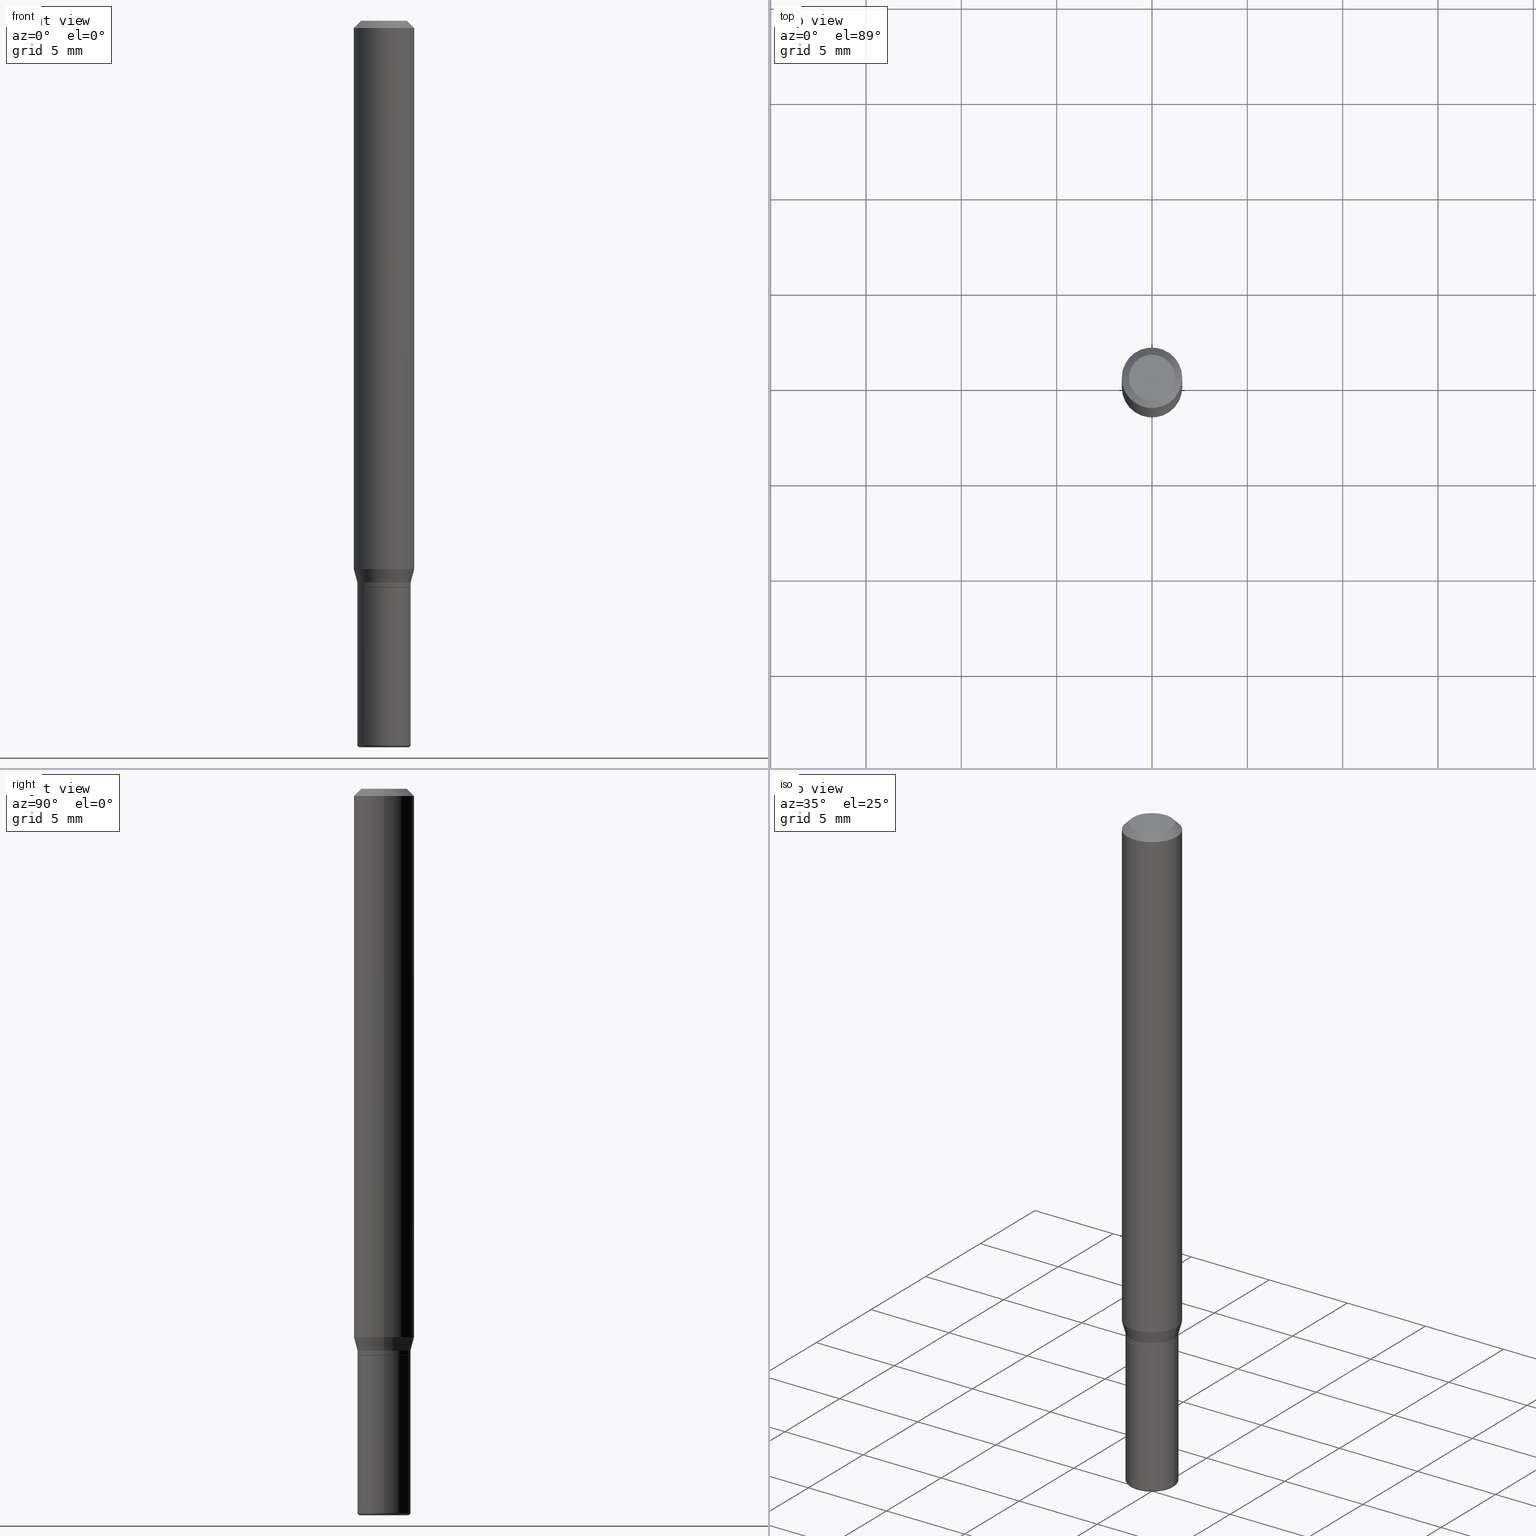
[diagram: canonical four-view strip — front | top / right | iso, engineering-drawing reading convention]
A machine part, canonical four-view strip (front | top / right | iso — engineering-drawing reading convention). The complete STEP part file that produces these views, byte-faithful:
ISO-10303-21;
HEADER;
FILE_DESCRIPTION (( 'STEP AP203' ),
    '1' );
FILE_NAME ('08612.STEP',
    '2024-02-29T19:59:27',
    ( '' ),
    ( '' ),
    'SwSTEP 2.0',
    'SolidWorks 2023',
    '' );
FILE_SCHEMA (( 'CONFIG_CONTROL_DESIGN' ));
ENDSEC;

DATA;
#1 = ORIENTED_EDGE ( 'NONE', *, *, #147, .F. ) ;
#2 = DIRECTION ( 'NONE',  ( -0.7071067811864267805, 7.493145998869918709E-15, 0.7071067811866682540 ) ) ;
#3 = ORIENTED_EDGE ( 'NONE', *, *, #218, .F. ) ;
#4 = EDGE_LOOP ( 'NONE', ( #86, #514 ) ) ;
#5 = CARTESIAN_POINT ( 'NONE',  ( -0.05450000000000009698, -3.697787375457225517E-15, -1.170000000000000151 ) ) ;
#6 = ORIENTED_EDGE ( 'NONE', *, *, #461, .F. ) ;
#7 = ADVANCED_FACE ( 'NONE', ( #10 ), #184, .T. ) ;
#8 = DIRECTION ( 'NONE',  ( -2.438088387897960049E-29, 3.491481338843145188E-15, 1.000000000000000000 ) ) ;
#9 = AXIS2_PLACEMENT_3D ( 'NONE', #497, #303, #457 ) ;
#10 = FACE_OUTER_BOUND ( 'NONE', #186, .T. ) ;
#11 = ADVANCED_FACE ( 'NONE', ( #79 ), #166, .T. ) ;
#12 = CARTESIAN_POINT ( 'NONE',  ( 2.861198503236610065E-29, -4.085033166446480067E-15, -1.170000000000000151 ) ) ;
#13 = DIRECTION ( 'NONE',  ( 1.000000000000000000, -6.982962677686274599E-15, 4.883557194083115704E-29 ) ) ;
#14 = EDGE_CURVE ( 'NONE', #104, #492, #118, .T. ) ;
#15 = DIRECTION ( 'NONE',  ( 1.000000000000000000, -6.982962677686262766E-15, 0.000000000000000000 ) ) ;
#16 = APPROVAL_STATUS ( 'not_yet_approved' ) ;
#17 = CARTESIAN_POINT ( 'NONE',  ( 0.06250000000000000000, -4.888073874380378612E-16, -0.01499999999999970281 ) ) ;
#18 = CIRCLE ( 'NONE', #70, 0.04999999999999999584 ) ;
#19 = CARTESIAN_POINT ( 'NONE',  ( 0.05450000000000009698, -4.465604632380382834E-15, -1.170000000000000151 ) ) ;
#20 = CARTESIAN_POINT ( 'NONE',  ( -0.05500000000000009742, -3.692488921109003115E-15, -1.169499999999999984 ) ) ;
#21 = EDGE_CURVE ( 'NONE', #126, #249, #80, .T. ) ;
#22 = CARTESIAN_POINT ( 'NONE',  ( -0.05500000000000018069, -4.261600379340434577E-15, -1.495000000000000107 ) ) ;
#23 = TOROIDAL_SURFACE ( 'NONE', #322, 0.05000000000000000278, 0.005000000000000177046 ) ;
#24 = CONICAL_SURFACE ( 'NONE', #483, 0.05450000000000009698, 0.7853981633972775267 ) ;
#25 = ORIENTED_EDGE ( 'NONE', *, *, #240, .T. ) ;
#26 = DIRECTION ( 'NONE',  ( -0.7071067811865479058, 2.468850131082261005E-15, -0.7071067811865471286 ) ) ;
#27 = ORIENTED_EDGE ( 'NONE', *, *, #48, .F. ) ;
#28 = ADVANCED_FACE ( 'NONE', ( #419 ), #222, .T. ) ;
#29 = CARTESIAN_POINT ( 'NONE',  ( 3.668203209277632395E-31, -5.237222008264614861E-17, -0.01499999999999970281 ) ) ;
#30 = LINE ( 'NONE', #354, #52 ) ;
#31 = ORIENTED_EDGE ( 'NONE', *, *, #412, .T. ) ;
#32 = AXIS2_PLACEMENT_3D ( 'NONE', #123, #454, #310 ) ;
#33 = AXIS2_PLACEMENT_3D ( 'NONE', #283, #436, #164 ) ;
#34 = DIRECTION ( 'NONE',  ( -1.000000000000000000, 6.982962677686266711E-15, 0.000000000000000000 ) ) ;
#35 = ORIENTED_EDGE ( 'NONE', *, *, #187, .F. ) ;
#36 = CARTESIAN_POINT ( 'NONE',  ( 3.668203209277632395E-31, -5.237222008264614861E-17, -0.01499999999999970281 ) ) ;
#37 = EDGE_LOOP ( 'NONE', ( #516, #212, #315, #203 ) ) ;
#38 = DIRECTION ( 'NONE',  ( 2.438088387897960049E-29, -3.491481338843145188E-15, -1.000000000000000000 ) ) ;
#39 = AXIS2_PLACEMENT_3D ( 'NONE', #308, #135, #61 ) ;
#40 = CARTESIAN_POINT ( 'NONE',  ( 0.05500000000000006967, -4.434181300330795770E-15, -1.160000000000000364 ) ) ;
#41 = VECTOR ( 'NONE', #394, 39.37007874015748143 ) ;
#42 = VERTEX_POINT ( 'NONE', #20 ) ;
#43 = COORDINATED_UNIVERSAL_TIME_OFFSET ( 5, 0, .BEHIND. ) ;
#44 = EDGE_CURVE ( 'NONE', #248, #476, #423, .T. ) ;
#45 = CARTESIAN_POINT ( 'NONE',  ( -0.04750000000000000749, 3.578768372314221353E-16, 2.731847993664239060E-16 ) ) ;
#46 = ORIENTED_EDGE ( 'NONE', *, *, #372, .T. ) ;
#47 = CARTESIAN_POINT ( 'NONE',  ( -0.06250000000000000000, -1.558292130156881494E-15, -0.01499999999999970281 ) ) ;
#48 = EDGE_CURVE ( 'NONE', #42, #325, #264, .T. ) ;
#49 = ORIENTED_EDGE ( 'NONE', *, *, #504, .F. ) ;
#50 = DIRECTION ( 'NONE',  ( -2.445468806185136597E-29, 3.491481338843145583E-15, 1.000000000000000000 ) ) ;
#51 = VERTEX_POINT ( 'NONE', #22 ) ;
#52 = VECTOR ( 'NONE', #468, 39.37007874015748143 ) ;
#53 = DATE_AND_TIME ( #411, #63 ) ;
#54 = CARTESIAN_POINT ( 'NONE',  ( 0.05500000000000018069, -5.603827548843249703E-15, -1.495000000000000107 ) ) ;
#55 = CARTESIAN_POINT ( 'NONE',  ( 0.000000000000000000, 0.000000000000000000, 0.000000000000000000 ) ) ;
#56 = DIRECTION ( 'NONE',  ( -2.445468806185136597E-29, 3.491481338843145583E-15, 1.000000000000000000 ) ) ;
#57 = DIRECTION ( 'NONE',  ( -2.445468806185136597E-29, 3.491481338843145583E-15, 1.000000000000000000 ) ) ;
#58 = AXIS2_PLACEMENT_3D ( 'NONE', #425, #513, #100 ) ;
#59 = APPROVAL_DATE_TIME ( #343, #257 ) ;
#60 = DIRECTION ( 'NONE',  ( -2.445468806185136877E-29, 3.491481338843145188E-15, 1.000000000000000000 ) ) ;
#61 = DIRECTION ( 'NONE',  ( 1.000000000000000000, -6.982962677686267499E-15, 4.876176775795936353E-29 ) ) ;
#62 = LINE ( 'NONE', #319, #127 ) ;
#63 = LOCAL_TIME ( 14, 59, 27.00000000000000000, #132 ) ;
#64 = AXIS2_PLACEMENT_3D ( 'NONE', #139, #141, #275 ) ;
#65 = DIRECTION ( 'NONE',  ( -2.445468806185136877E-29, 3.491481338843145188E-15, 1.000000000000000000 ) ) ;
#66 = ORIENTED_EDGE ( 'NONE', *, *, #180, .F. ) ;
#67 = DIRECTION ( 'NONE',  ( -2.445468806185136597E-29, 3.491481338843145583E-15, 1.000000000000000000 ) ) ;
#68 = VERTEX_POINT ( 'NONE', #17 ) ;
#69 = CYLINDRICAL_SURFACE ( 'NONE', #64, 0.05500000000000009742 ) ;
#70 = AXIS2_PLACEMENT_3D ( 'NONE', #155, #87, #478 ) ;
#71 = PLANE ( 'NONE',  #314 ) ;
#72 = EDGE_CURVE ( 'NONE', #249, #126, #294, .T. ) ;
#73 = ADVANCED_FACE ( 'NONE', ( #299 ), #336, .T. ) ;
#74 = ORIENTED_EDGE ( 'NONE', *, *, #360, .F. ) ;
#75 = DIRECTION ( 'NONE',  ( -2.445468806185136597E-29, 3.491481338843145583E-15, 1.000000000000000000 ) ) ;
#76 = VERTEX_POINT ( 'NONE', #384 ) ;
#77 = PERSON_AND_ORGANIZATION ( #433, #369 ) ;
#78 = CARTESIAN_POINT ( 'NONE',  ( 0.05000000000000000278, -5.568912735454817265E-15, -1.495000000000000107 ) ) ;
#79 = FACE_OUTER_BOUND ( 'NONE', #402, .T. ) ;
#80 = CIRCLE ( 'NONE', #270, 0.05450000000000009698 ) ;
#81 = FACE_OUTER_BOUND ( 'NONE', #142, .T. ) ;
#82 = CIRCLE ( 'NONE', #464, 0.04999999999999999584 ) ;
#83 = ORIENTED_EDGE ( 'NONE', *, *, #167, .F. ) ;
#84 = APPROVAL_DATE_TIME ( #243, #349 ) ;
#85 = DIRECTION ( 'NONE',  ( 1.000000000000000000, -6.982962677686270655E-15, 0.000000000000000000 ) ) ;
#86 = ORIENTED_EDGE ( 'NONE', *, *, #21, .F. ) ;
#87 = DIRECTION ( 'NONE',  ( -2.445468806185136597E-29, 3.491481338843145583E-15, 1.000000000000000000 ) ) ;
#88 = EDGE_LOOP ( 'NONE', ( #359, #353, #1, #83 ) ) ;
#89 = APPROVAL_STATUS ( 'not_yet_approved' ) ;
#90 = AXIS2_PLACEMENT_3D ( 'NONE', #505, #416, #380 ) ;
#91 = LINE ( 'NONE', #414, #385 ) ;
#92 =( LENGTH_UNIT ( ) NAMED_UNIT ( * ) SI_UNIT ( $, .METRE. ) );
#93 = DIRECTION ( 'NONE',  ( 1.000000000000000000, -6.982962677686276177E-15, 0.000000000000000000 ) ) ;
#94 = CARTESIAN_POINT ( 'NONE',  ( 0.04999999999999999584, -5.586370142149033090E-15, -1.500000000000000444 ) ) ;
#95 = APPLICATION_CONTEXT ( 'configuration controlled 3d designs of mechanical parts and assemblies' ) ;
#96 = VECTOR ( 'NONE', #113, 39.37007874015748143 ) ;
#97 = FACE_OUTER_BOUND ( 'NONE', #140, .T. ) ;
#98 = DIRECTION ( 'NONE',  ( -0.2588190451025209060, 5.211531920934547097E-15, 0.9659258262890682012 ) ) ;
#99 = CC_DESIGN_PERSON_AND_ORGANIZATION_ASSIGNMENT ( #178, #381, ( #124 ) ) ;
#100 = DIRECTION ( 'NONE',  ( 1.000000000000000000, -6.982962677686270655E-15, 0.000000000000000000 ) ) ;
#101 = CONICAL_SURFACE ( 'NONE', #152, 0.05500000000000006967, 0.2617993877991495744 ) ;
#102 = APPROVAL_PERSON_ORGANIZATION ( #77, #349, #157 ) ;
#103 = DIRECTION ( 'NONE',  ( -2.445468806185136597E-29, 3.491481338843145583E-15, 1.000000000000000000 ) ) ;
#104 = VERTEX_POINT ( 'NONE', #181 ) ;
#105 = DIRECTION ( 'NONE',  ( 1.000000000000000000, -6.982962677686265922E-15, 4.876176775795935793E-29 ) ) ;
#106 = ORIENTED_EDGE ( 'NONE', *, *, #115, .F. ) ;
#107 = CARTESIAN_POINT ( 'NONE',  ( 3.316907271900976589E-16, 0.04750000000000000749, -2.925296391183627249E-17 ) ) ;
#108 = EDGE_CURVE ( 'NONE', #170, #492, #259, .T. ) ;
#109 = ORIENTED_EDGE ( 'NONE', *, *, #167, .T. ) ;
#110 = VECTOR ( 'NONE', #2, 39.37007874015748143 ) ;
#111 = DIRECTION ( 'NONE',  ( 1.000000000000000000, -6.982962677686266711E-15, 4.852736867747365086E-29 ) ) ;
#112 = ORIENTED_EDGE ( 'NONE', *, *, #180, .T. ) ;
#113 = DIRECTION ( 'NONE',  ( -2.445468806185136877E-29, 3.491481338843145188E-15, 1.000000000000000000 ) ) ;
#114 = EDGE_LOOP ( 'NONE', ( #163, #3, #207, #334 ) ) ;
#115 = EDGE_CURVE ( 'NONE', #51, #144, #482, .T. ) ;
#116 = DIRECTION ( 'NONE',  ( 1.000000000000000000, -6.982962677686276177E-15, 0.000000000000000000 ) ) ;
#117 = EDGE_CURVE ( 'NONE', #42, #170, #348, .T. ) ;
#118 = CIRCLE ( 'NONE', #438, 0.06250000000000000000 ) ;
#119 = CARTESIAN_POINT ( 'NONE',  ( 0.05500000000000009742, -3.840629472727453298E-16, 2.681897226687769380E-30 ) ) ;
#120 = AXIS2_PLACEMENT_3D ( 'NONE', #370, #365, #481 ) ;
#121 = ORIENTED_EDGE ( 'NONE', *, *, #44, .T. ) ;
#122 = DIRECTION ( 'NONE',  ( 1.000000000000000000, -6.982962677686274599E-15, 0.000000000000000000 ) ) ;
#123 = CARTESIAN_POINT ( 'NONE',  ( 0.000000000000000000, 0.000000000000000000, 0.000000000000000000 ) ) ;
#124 = PRODUCT_DEFINITION ( 'UNKNOWN', '', #424, #358 ) ;
#125 = COORDINATED_UNIVERSAL_TIME_OFFSET ( 5, 0, .BEHIND. ) ;
#126 = VERTEX_POINT ( 'NONE', #19 ) ;
#127 = VECTOR ( 'NONE', #470, 39.37007874015748143 ) ;
#128 = LOCAL_TIME ( 14, 59, 27.00000000000000000, #125 ) ;
#129 = DIRECTION ( 'NONE',  ( 1.000000000000000000, -6.982962677686258033E-15, 0.000000000000000000 ) ) ;
#130 = LENGTH_MEASURE_WITH_UNIT ( LENGTH_MEASURE( 0.02539999999999999897 ), #92 );
#131 = DIRECTION ( 'NONE',  ( 1.000000000000000000, -6.982962677686276177E-15, 0.000000000000000000 ) ) ;
#132 = COORDINATED_UNIVERSAL_TIME_OFFSET ( 5, 0, .BEHIND. ) ;
#133 = CARTESIAN_POINT ( 'NONE',  ( -0.05500000000000006967, -3.659319848389994547E-15, -1.160000000000000364 ) ) ;
#134 = ADVANCED_FACE ( 'NONE', ( #97 ), #23, .T. ) ;
#135 = DIRECTION ( 'NONE',  ( -2.445468806185136597E-29, 3.491481338843145583E-15, 1.000000000000000000 ) ) ;
#136 = CIRCLE ( 'NONE', #430, 0.04750000000000000749 ) ;
#137 = CONICAL_SURFACE ( 'NONE', #236, 0.06250000000000000000, 0.7853981633974488341 ) ;
#138 = DIRECTION ( 'NONE',  ( -2.445468806185136877E-29, 3.491481338843145188E-15, 1.000000000000000000 ) ) ;
#139 = CARTESIAN_POINT ( 'NONE',  ( 0.000000000000000000, 0.000000000000000000, 0.000000000000000000 ) ) ;
#140 = EDGE_LOOP ( 'NONE', ( #146, #31, #431, #106 ) ) ;
#141 = DIRECTION ( 'NONE',  ( -2.445468806185136597E-29, 3.491481338843145583E-15, 1.000000000000000000 ) ) ;
#142 = EDGE_LOOP ( 'NONE', ( #290, #371, #46, #272 ) ) ;
#143 = AXIS2_PLACEMENT_3D ( 'NONE', #407, #245, #329 ) ;
#144 = VERTEX_POINT ( 'NONE', #54 ) ;
#145 = PLANE ( 'NONE',  #279 ) ;
#146 = ORIENTED_EDGE ( 'NONE', *, *, #305, .F. ) ;
#147 = EDGE_CURVE ( 'NONE', #325, #42, #331, .T. ) ;
#148 = FACE_OUTER_BOUND ( 'NONE', #114, .T. ) ;
#149 = ORIENTED_EDGE ( 'NONE', *, *, #342, .T. ) ;
#150 = DIRECTION ( 'NONE',  ( -1.000000000000000000, 6.982962677686265922E-15, -4.876176775795935793E-29 ) ) ;
#151 = CC_DESIGN_SECURITY_CLASSIFICATION ( #153, ( #424 ) ) ;
#152 = AXIS2_PLACEMENT_3D ( 'NONE', #286, #206, #85 ) ;
#153 = SECURITY_CLASSIFICATION ( '', '', #413 ) ;
#154 = CC_DESIGN_PERSON_AND_ORGANIZATION_ASSIGNMENT ( #496, #442, ( #153 ) ) ;
#155 = CARTESIAN_POINT ( 'NONE',  ( 3.668203209277706016E-29, -5.237222008264719754E-15, -1.500000000000000444 ) ) ;
#156 = ORIENTED_EDGE ( 'NONE', *, *, #477, .F. ) ;
#157 = APPROVAL_ROLE ( '' ) ;
#158 = DIRECTION ( 'NONE',  ( 1.000000000000000000, -6.982962677686276177E-15, 0.000000000000000000 ) ) ;
#159 = EDGE_LOOP ( 'NONE', ( #390, #510, #256, #242 ) ) ;
#160 = SHAPE_DEFINITION_REPRESENTATION ( #182, #224 ) ;
#161 = CARTESIAN_POINT ( 'NONE',  ( 2.861198503236610065E-29, -4.085033166446480067E-15, -1.170000000000000151 ) ) ;
#162 = ORIENTED_EDGE ( 'NONE', *, *, #383, .T. ) ;
#163 = ORIENTED_EDGE ( 'NONE', *, *, #345, .F. ) ;
#164 = DIRECTION ( 'NONE',  ( 1.000000000000000000, -6.982962677686266711E-15, 4.876176775795935793E-29 ) ) ;
#165 = CONICAL_SURFACE ( 'NONE', #58, 0.05500000000000006967, 0.2617993877991495744 ) ;
#166 = CYLINDRICAL_SURFACE ( 'NONE', #32, 0.05500000000000009742 ) ;
#167 = EDGE_CURVE ( 'NONE', #126, #325, #91, .T. ) ;
#168 = CARTESIAN_POINT ( 'NONE',  ( 3.582686580359767159E-29, -5.359686688179454114E-15, -1.500000000000000444 ) ) ;
#169 = ORIENTED_EDGE ( 'NONE', *, *, #229, .F. ) ;
#170 = VERTEX_POINT ( 'NONE', #216 ) ;
#171 = APPLICATION_PROTOCOL_DEFINITION ( 'international standard', 'config_control_design', 1994, #300 ) ;
#172 = CARTESIAN_POINT ( 'NONE',  ( 2.861198503236610065E-29, -4.085033166446480067E-15, -1.170000000000000151 ) ) ;
#173 = PERSON_AND_ORGANIZATION_ROLE ( 'creator' ) ;
#174 = AXIS2_PLACEMENT_3D ( 'NONE', #183, #220, #268 ) ;
#175 = CC_DESIGN_PERSON_AND_ORGANIZATION_ASSIGNMENT ( #296, #452, ( #424 ) ) ;
#176 = AXIS2_PLACEMENT_3D ( 'NONE', #512, #196, #34 ) ;
#177 = LINE ( 'NONE', #339, #226 ) ;
#178 = PERSON_AND_ORGANIZATION ( #433, #369 ) ;
#179 = CARTESIAN_POINT ( 'NONE',  ( 3.655975865246779122E-29, -5.219764601570503141E-15, -1.495000000000000107 ) ) ;
#180 = EDGE_CURVE ( 'NONE', #51, #476, #177, .T. ) ;
#181 = CARTESIAN_POINT ( 'NONE',  ( 0.06250000000000000000, -4.388825627286634782E-15, -1.132009618943234264 ) ) ;
#182 = PRODUCT_DEFINITION_SHAPE ( 'NONE', 'NONE',  #124 ) ;
#183 = CARTESIAN_POINT ( 'NONE',  ( 0.000000000000000000, 0.000000000000000000, 0.000000000000000000 ) ) ;
#184 = TOROIDAL_SURFACE ( 'NONE', #511, 0.05000000000000000278, 0.005000000000000177046 ) ;
#185 = AXIS2_PLACEMENT_3D ( 'NONE', #324, #50, #288 ) ;
#186 = EDGE_LOOP ( 'NONE', ( #162, #397, #49, #480 ) ) ;
#187 = EDGE_CURVE ( 'NONE', #476, #248, #234, .T. ) ;
#188 = LINE ( 'NONE', #350, #518 ) ;
#189 = CARTESIAN_POINT ( 'NONE',  ( 3.668203209277706016E-29, -5.237222008264719754E-15, -1.500000000000000444 ) ) ;
#190 = VERTEX_POINT ( 'NONE', #94 ) ;
#191 = FACE_OUTER_BOUND ( 'NONE', #4, .T. ) ;
#192 = EDGE_CURVE ( 'NONE', #492, #439, #382, .T. ) ;
#193 = LOCAL_TIME ( 14, 59, 27.00000000000000000, #363 ) ;
#194 = ORIENTED_EDGE ( 'NONE', *, *, #318, .T. ) ;
#195 = AXIS2_PLACEMENT_3D ( 'NONE', #490, #75, #122 ) ;
#196 = DIRECTION ( 'NONE',  ( 2.445468806185136597E-29, -3.491481338843145583E-15, -1.000000000000000000 ) ) ;
#197 = DIRECTION ( 'NONE',  ( 1.000000000000000000, -6.982962677686266711E-15, 0.000000000000000000 ) ) ;
#198 = ORIENTED_EDGE ( 'NONE', *, *, #388, .F. ) ;
#199 = DIRECTION ( 'NONE',  ( -1.000000000000000000, 6.982962677686265922E-15, -4.876176775795935793E-29 ) ) ;
#200 = LOCAL_TIME ( 14, 59, 27.00000000000000000, #378 ) ;
#201 = CARTESIAN_POINT ( 'NONE',  ( 3.840629472727732850E-16, 0.05499999999999591327, -1.170000000000000151 ) ) ;
#202 = EDGE_CURVE ( 'NONE', #439, #68, #450, .T. ) ;
#203 = ORIENTED_EDGE ( 'NONE', *, *, #342, .F. ) ;
#204 = CYLINDRICAL_SURFACE ( 'NONE', #185, 0.05500000000000007661 ) ;
#205 = EDGE_LOOP ( 'NONE', ( #246, #112, #499, #156 ) ) ;
#206 = DIRECTION ( 'NONE',  ( -2.445468806185136597E-29, 3.491481338843145583E-15, 1.000000000000000000 ) ) ;
#207 = ORIENTED_EDGE ( 'NONE', *, *, #360, .T. ) ;
#208 = PRODUCT_RELATED_PRODUCT_CATEGORY ( 'detail', '', ( #304 ) ) ;
#209 = ADVANCED_FACE ( 'NONE', ( #426 ), #69, .T. ) ;
#210 = CYLINDRICAL_SURFACE ( 'NONE', #33, 0.06250000000000000000 ) ;
#211 = CIRCLE ( 'NONE', #503, 0.06250000000000000000 ) ;
#212 = ORIENTED_EDGE ( 'NONE', *, *, #108, .T. ) ;
#213 = PERSON_AND_ORGANIZATION ( #433, #369 ) ;
#214 = CARTESIAN_POINT ( 'NONE',  ( 2.859975768833516703E-29, -4.083287425777058564E-15, -1.169499999999999984 ) ) ;
#215 = DIRECTION ( 'NONE',  ( 1.000000000000000000, 0.000000000000000000, 0.000000000000000000 ) ) ;
#216 = CARTESIAN_POINT ( 'NONE',  ( -0.05500000000000006967, -3.583810549235586733E-15, -1.160000000000000364 ) ) ;
#217 = APPLICATION_PROTOCOL_DEFINITION ( 'international standard', 'config_control_design', 1994, #95 ) ;
#218 = EDGE_CURVE ( 'NONE', #393, #76, #136, .T. ) ;
#219 = CIRCLE ( 'NONE', #120, 0.06250000000000000000 ) ;
#220 = DIRECTION ( 'NONE',  ( -2.445468806185136597E-29, 3.491481338843145583E-15, 1.000000000000000000 ) ) ;
#221 = DIRECTION ( 'NONE',  ( 1.000000000000000000, -6.982962677686262766E-15, 0.000000000000000000 ) ) ;
#222 = CYLINDRICAL_SURFACE ( 'NONE', #39, 0.05500000000000007661 ) ;
#223 = ADVANCED_FACE ( 'NONE', ( #148 ), #410, .T. ) ;
#224 = ADVANCED_BREP_SHAPE_REPRESENTATION ( '08612', ( #309, #491, #362 ), #458 ) ;
#225 = LINE ( 'NONE', #387, #347 ) ;
#226 = VECTOR ( 'NONE', #60, 39.37007874015748143 ) ;
#227 = AXIS2_PLACEMENT_3D ( 'NONE', #321, #508, #429 ) ;
#228 = DIRECTION ( 'NONE',  ( 1.000000000000000000, -6.982962677686266711E-15, 0.000000000000000000 ) ) ;
#229 = EDGE_CURVE ( 'NONE', #104, #68, #62, .T. ) ;
#230 = DIRECTION ( 'NONE',  ( -1.000000000000000000, 6.982962677686266711E-15, 0.000000000000000000 ) ) ;
#231 = ORIENTED_EDGE ( 'NONE', *, *, #318, .F. ) ;
#232 = CARTESIAN_POINT ( 'NONE',  ( -0.05450000000000009698, -3.695138148283113527E-15, -1.170000000000000151 ) ) ;
#233 = ADVANCED_FACE ( 'NONE', ( #465 ), #165, .T. ) ;
#234 = CIRCLE ( 'NONE', #9, 0.05500000000000000028 ) ;
#235 = ORIENTED_EDGE ( 'NONE', *, *, #202, .F. ) ;
#236 = AXIS2_PLACEMENT_3D ( 'NONE', #273, #237, #230 ) ;
#237 = DIRECTION ( 'NONE',  ( 2.445468806185136597E-29, -3.491481338843145583E-15, -1.000000000000000000 ) ) ;
#238 = EDGE_LOOP ( 'NONE', ( #479, #25, #149, #292 ) ) ;
#239 = DIRECTION ( 'NONE',  ( 1.000000000000000000, -6.982962677686280121E-15, 0.000000000000000000 ) ) ;
#240 = EDGE_CURVE ( 'NONE', #170, #488, #386, .T. ) ;
#241 = DIRECTION ( 'NONE',  ( -6.982962677686266711E-15, -1.000000000000000000, 3.491481338843145583E-15 ) ) ;
#242 = ORIENTED_EDGE ( 'NONE', *, *, #372, .F. ) ;
#243 = DATE_AND_TIME ( #446, #449 ) ;
#244 = CONICAL_SURFACE ( 'NONE', #495, 0.05450000000000009698, 0.7853981633972775267 ) ;
#245 = DIRECTION ( 'NONE',  ( -2.445468806185136597E-29, 3.491481338843145583E-15, 1.000000000000000000 ) ) ;
#246 = ORIENTED_EDGE ( 'NONE', *, *, #504, .T. ) ;
#247 = PLANE ( 'NONE',  #418 ) ;
#248 = VERTEX_POINT ( 'NONE', #515 ) ;
#249 = VERTEX_POINT ( 'NONE', #232 ) ;
#250 = CALENDAR_DATE ( 2024, 29, 2 ) ;
#251 = DIRECTION ( 'NONE',  ( -2.445468806185136597E-29, 3.491481338843145583E-15, 1.000000000000000000 ) ) ;
#252 = VECTOR ( 'NONE', #138, 39.37007874015748143 ) ;
#253 = APPROVAL_PERSON_ORGANIZATION ( #306, #257, #263 ) ;
#254 = APPROVAL_ROLE ( '' ) ;
#255 = AXIS2_PLACEMENT_3D ( 'NONE', #422, #103, #311 ) ;
#256 = ORIENTED_EDGE ( 'NONE', *, *, #415, .F. ) ;
#257 = APPROVAL ( #16, 'UNSPECIFIED' ) ;
#258 = PERSON_AND_ORGANIZATION ( #433, #369 ) ;
#259 = LINE ( 'NONE', #133, #417 ) ;
#260 =( NAMED_UNIT ( * ) SI_UNIT ( $, .STERADIAN. ) SOLID_ANGLE_UNIT ( ) );
#261 = CARTESIAN_POINT ( 'NONE',  ( 2.861198503236610065E-29, -4.085033166446480067E-15, -1.170000000000000151 ) ) ;
#262 = APPROVAL_PERSON_ORGANIZATION ( #301, #396, #254 ) ;
#263 = APPROVAL_ROLE ( '' ) ;
#264 = CIRCLE ( 'NONE', #472, 0.05500000000000009742 ) ;
#265 = AXIS2_PLACEMENT_3D ( 'NONE', #201, #38, #199 ) ;
#266 = CARTESIAN_POINT ( 'NONE',  ( 2.768294211427202327E-29, -3.952390459931242324E-15, -1.132009618943234264 ) ) ;
#267 = CARTESIAN_POINT ( 'NONE',  ( -0.06250000000000000000, 4.440892098500626162E-16, -3.074334431409316114E-30 ) ) ;
#268 = DIRECTION ( 'NONE',  ( 1.000000000000000000, -6.982962677686266711E-15, 4.876176775795935793E-29 ) ) ;
#269 = CARTESIAN_POINT ( 'NONE',  ( 0.05500000000000006967, -4.434181300330795770E-15, -1.160000000000000364 ) ) ;
#270 = AXIS2_PLACEMENT_3D ( 'NONE', #172, #57, #93 ) ;
#271 = CIRCLE ( 'NONE', #440, 0.005000000000000177046 ) ;
#272 = ORIENTED_EDGE ( 'NONE', *, *, #240, .F. ) ;
#273 = CARTESIAN_POINT ( 'NONE',  ( 3.668203209277632395E-31, -5.237222008264614861E-17, -0.01499999999999970281 ) ) ;
#274 = ORIENTED_EDGE ( 'NONE', *, *, #72, .T. ) ;
#275 = DIRECTION ( 'NONE',  ( 1.000000000000000000, -6.982962677686266711E-15, 4.876176775795935793E-29 ) ) ;
#276 = EDGE_LOOP ( 'NONE', ( #287, #366, #231, #169 ) ) ;
#277 = DIRECTION ( 'NONE',  ( 2.438088387897960049E-29, -3.491481338843145188E-15, -1.000000000000000000 ) ) ;
#278 = EDGE_LOOP ( 'NONE', ( #6, #466, #194, #74 ) ) ;
#279 = AXIS2_PLACEMENT_3D ( 'NONE', #107, #277, #150 ) ;
#280 = DIRECTION ( 'NONE',  ( -2.445468806185136597E-29, 3.491481338843145583E-15, 1.000000000000000000 ) ) ;
#281 = ADVANCED_FACE ( 'NONE', ( #313 ), #137, .T. ) ;
#282 = FACE_OUTER_BOUND ( 'NONE', #404, .T. ) ;
#283 = CARTESIAN_POINT ( 'NONE',  ( 0.000000000000000000, 0.000000000000000000, 0.000000000000000000 ) ) ;
#284 = ORIENTED_EDGE ( 'NONE', *, *, #485, .T. ) ;
#285 = AXIS2_PLACEMENT_3D ( 'NONE', #261, #460, #131 ) ;
#286 = CARTESIAN_POINT ( 'NONE',  ( 2.836743815174759641E-29, -4.050118353058050785E-15, -1.160000000000000364 ) ) ;
#287 = ORIENTED_EDGE ( 'NONE', *, *, #14, .T. ) ;
#288 = DIRECTION ( 'NONE',  ( 1.000000000000000000, -6.982962677686267499E-15, 4.876176775795936353E-29 ) ) ;
#289 = ADVANCED_FACE ( 'NONE', ( #357 ), #145, .F. ) ;
#290 = ORIENTED_EDGE ( 'NONE', *, *, #117, .F. ) ;
#291 = DATE_AND_TIME ( #456, #128 ) ;
#292 = ORIENTED_EDGE ( 'NONE', *, *, #485, .F. ) ;
#293 = DATE_TIME_ROLE ( 'classification_date' ) ;
#294 = CIRCLE ( 'NONE', #285, 0.05450000000000009698 ) ;
#295 = CIRCLE ( 'NONE', #195, 0.05500000000000018069 ) ;
#296 = PERSON_AND_ORGANIZATION ( #433, #369 ) ;
#297 = DIRECTION ( 'NONE',  ( 1.000000000000000000, -6.982962677686258033E-15, 0.000000000000000000 ) ) ;
#298 =( CONVERSION_BASED_UNIT ( 'INCH', #130 ) LENGTH_UNIT ( ) NAMED_UNIT ( #302 ) );
#299 = FACE_OUTER_BOUND ( 'NONE', #356, .T. ) ;
#300 = APPLICATION_CONTEXT ( 'configuration controlled 3d designs of mechanical parts and assemblies' ) ;
#301 = PERSON_AND_ORGANIZATION ( #433, #369 ) ;
#302 = DIMENSIONAL_EXPONENTS ( 1.000000000000000000, 0.000000000000000000, 0.000000000000000000, 0.000000000000000000, 0.000000000000000000, 0.000000000000000000, 0.000000000000000000 ) ;
#303 = DIRECTION ( 'NONE',  ( -2.445468806185136597E-29, 3.491481338843145583E-15, 1.000000000000000000 ) ) ;
#304 = PRODUCT ( '08612', '08612', '', ( #338 ) ) ;
#305 = EDGE_CURVE ( 'NONE', #351, #51, #355, .T. ) ;
#306 = PERSON_AND_ORGANIZATION ( #433, #369 ) ;
#307 = VECTOR ( 'NONE', #65, 39.37007874015748143 ) ;
#308 = CARTESIAN_POINT ( 'NONE',  ( 0.000000000000000000, 0.000000000000000000, 0.000000000000000000 ) ) ;
#309 = MANIFOLD_SOLID_BREP ( 'Body-Move/Copy2[1]', #474 ) ;
#310 = DIRECTION ( 'NONE',  ( 1.000000000000000000, -6.982962677686266711E-15, 4.876176775795935793E-29 ) ) ;
#311 = DIRECTION ( 'NONE',  ( 1.000000000000000000, -6.982962677686270655E-15, 0.000000000000000000 ) ) ;
#312 = ADVANCED_FACE ( 'NONE', ( #191 ), #71, .F. ) ;
#313 = FACE_OUTER_BOUND ( 'NONE', #278, .T. ) ;
#314 = AXIS2_PLACEMENT_3D ( 'NONE', #398, #389, #105 ) ;
#315 = ORIENTED_EDGE ( 'NONE', *, *, #14, .F. ) ;
#316 = DIRECTION ( 'NONE',  ( -2.445468806185136597E-29, 3.491481338843145583E-15, 1.000000000000000000 ) ) ;
#317 = ORIENTED_EDGE ( 'NONE', *, *, #192, .F. ) ;
#318 = EDGE_CURVE ( 'NONE', #68, #439, #211, .T. ) ;
#319 = CARTESIAN_POINT ( 'NONE',  ( 0.06250000000000000000, -4.364351673553916694E-16, 3.047610484872459871E-30 ) ) ;
#320 = CC_DESIGN_PERSON_AND_ORGANIZATION_ASSIGNMENT ( #258, #375, ( #304 ) ) ;
#321 = CARTESIAN_POINT ( 'NONE',  ( -0.05000000000000000278, -4.864493233690452733E-15, -1.495000000000000107 ) ) ;
#322 = AXIS2_PLACEMENT_3D ( 'NONE', #179, #453, #500 ) ;
#323 = CC_DESIGN_APPROVAL ( #257, ( #124 ) ) ;
#324 = CARTESIAN_POINT ( 'NONE',  ( 0.000000000000000000, 0.000000000000000000, 0.000000000000000000 ) ) ;
#325 = VERTEX_POINT ( 'NONE', #473 ) ;
#326 = LINE ( 'NONE', #5, #110 ) ;
#327 = CC_DESIGN_PERSON_AND_ORGANIZATION_ASSIGNMENT ( #213, #173, ( #424 ) ) ;
#328 = DATE_AND_TIME ( #250, #193 ) ;
#329 = DIRECTION ( 'NONE',  ( 1.000000000000000000, -6.982962677686270655E-15, 0.000000000000000000 ) ) ;
#330 = ORIENTED_EDGE ( 'NONE', *, *, #115, .T. ) ;
#331 = CIRCLE ( 'NONE', #395, 0.05500000000000009742 ) ;
#332 = CIRCLE ( 'NONE', #451, 0.04750000000000000749 ) ;
#333 = CARTESIAN_POINT ( 'NONE',  ( -0.06250000000000000000, -3.508301250081179708E-15, -1.132009618943234264 ) ) ;
#334 = ORIENTED_EDGE ( 'NONE', *, *, #202, .T. ) ;
#335 = CARTESIAN_POINT ( 'NONE',  ( -6.680649051745406845E-45, 9.538196290434862081E-31, 2.731847993664263218E-16 ) ) ;
#336 = CYLINDRICAL_SURFACE ( 'NONE', #174, 0.06250000000000000000 ) ;
#337 = AXIS2_PLACEMENT_3D ( 'NONE', #376, #56, #15 ) ;
#338 = MECHANICAL_CONTEXT ( 'NONE', #95, 'mechanical' ) ;
#339 = CARTESIAN_POINT ( 'NONE',  ( -0.05500000000000009742, 3.907985046680557945E-16, -2.705414299640202916E-30 ) ) ;
#340 =( NAMED_UNIT ( * ) PLANE_ANGLE_UNIT ( ) SI_UNIT ( $, .RADIAN. ) );
#341 = DIRECTION ( 'NONE',  ( -2.445468806185136597E-29, 3.491481338843145583E-15, 1.000000000000000000 ) ) ;
#342 = EDGE_CURVE ( 'NONE', #488, #104, #361, .T. ) ;
#343 = DATE_AND_TIME ( #493, #200 ) ;
#344 = CARTESIAN_POINT ( 'NONE',  ( -0.05500000000000007661, 3.907985046680556465E-16, -2.705414299640202216E-30 ) ) ;
#345 = EDGE_CURVE ( 'NONE', #76, #68, #30, .T. ) ;
#346 = CLOSED_SHELL ( 'NONE', ( #28, #391, #281, #455, #233, #409, #73, #223, #289, #312, #443, #469 ) ) ;
#347 = VECTOR ( 'NONE', #26, 39.37007874015748143 ) ;
#348 = LINE ( 'NONE', #344, #252 ) ;
#349 = APPROVAL ( #489, 'UNSPECIFIED' ) ;
#350 = CARTESIAN_POINT ( 'NONE',  ( 0.05500000000000007661, -3.840629472727452311E-16, 2.681897226687768680E-30 ) ) ;
#351 = VERTEX_POINT ( 'NONE', #427 ) ;
#352 = DIRECTION ( 'NONE',  ( -2.445468806185136597E-29, 3.491481338843145583E-15, 1.000000000000000000 ) ) ;
#353 = ORIENTED_EDGE ( 'NONE', *, *, #388, .T. ) ;
#354 = CARTESIAN_POINT ( 'NONE',  ( 0.06250000000000000000, -4.811533449433669144E-16, -0.01499999999999970281 ) ) ;
#355 = CIRCLE ( 'NONE', #227, 0.005000000000000177046 ) ;
#356 = EDGE_LOOP ( 'NONE', ( #317, #284, #445, #235 ) ) ;
#357 = FACE_OUTER_BOUND ( 'NONE', #463, .T. ) ;
#358 = DESIGN_CONTEXT ( 'detailed design', #300, 'design' ) ;
#359 = ORIENTED_EDGE ( 'NONE', *, *, #21, .T. ) ;
#360 = EDGE_CURVE ( 'NONE', #393, #439, #225, .T. ) ;
#361 = LINE ( 'NONE', #269, #41 ) ;
#362 = AXIS2_PLACEMENT_3D ( 'NONE', #55, #498, #215 ) ;
#363 = COORDINATED_UNIVERSAL_TIME_OFFSET ( 5, 0, .BEHIND. ) ;
#364 = DIRECTION ( 'NONE',  ( 1.000000000000000000, -6.982962677686266711E-15, 4.852736867747365086E-29 ) ) ;
#365 = DIRECTION ( 'NONE',  ( -2.445468806185136597E-29, 3.491481338843145583E-15, 1.000000000000000000 ) ) ;
#366 = ORIENTED_EDGE ( 'NONE', *, *, #192, .T. ) ;
#367 = FACE_OUTER_BOUND ( 'NONE', #276, .T. ) ;
#368 = ORIENTED_EDGE ( 'NONE', *, *, #412, .F. ) ;
#369 = ORGANIZATION ( 'UNSPECIFIED', 'UNSPECIFIED', '' ) ;
#370 = CARTESIAN_POINT ( 'NONE',  ( 2.768294211427202327E-29, -3.952390459931242324E-15, -1.132009618943234264 ) ) ;
#371 = ORIENTED_EDGE ( 'NONE', *, *, #48, .T. ) ;
#372 = EDGE_CURVE ( 'NONE', #325, #488, #188, .T. ) ;
#373 = APPROVAL_DATE_TIME ( #53, #396 ) ;
#374 = DIRECTION ( 'NONE',  ( -2.445468806185136597E-29, 3.491481338843145583E-15, 1.000000000000000000 ) ) ;
#375 = PERSON_AND_ORGANIZATION_ROLE ( 'design_owner' ) ;
#376 = CARTESIAN_POINT ( 'NONE',  ( 2.861198503236610065E-29, -4.085033166446480067E-15, -1.170000000000000151 ) ) ;
#377 = CIRCLE ( 'NONE', #143, 0.05500000000000006967 ) ;
#378 = COORDINATED_UNIVERSAL_TIME_OFFSET ( 5, 0, .BEHIND. ) ;
#379 = CC_DESIGN_DATE_AND_TIME_ASSIGNMENT ( #291, #447, ( #124 ) ) ;
#380 = DIRECTION ( 'NONE',  ( 1.000000000000000000, -6.982962677686274599E-15, 0.000000000000000000 ) ) ;
#381 = PERSON_AND_ORGANIZATION_ROLE ( 'creator' ) ;
#382 = LINE ( 'NONE', #267, #307 ) ;
#383 = EDGE_CURVE ( 'NONE', #190, #351, #82, .T. ) ;
#384 = CARTESIAN_POINT ( 'NONE',  ( 0.04750000000000000749, -4.035134999187568762E-16, 2.731847993664288856E-16 ) ) ;
#385 = VECTOR ( 'NONE', #501, 39.37007874015748143 ) ;
#386 = CIRCLE ( 'NONE', #255, 0.05500000000000006967 ) ;
#387 = CARTESIAN_POINT ( 'NONE',  ( -0.06250000000000000000, 3.840629472727455270E-16, -0.01499999999999970281 ) ) ;
#388 = EDGE_CURVE ( 'NONE', #249, #42, #326, .T. ) ;
#389 = DIRECTION ( 'NONE',  ( -2.438088387897960049E-29, 3.491481338843145188E-15, 1.000000000000000000 ) ) ;
#390 = ORIENTED_EDGE ( 'NONE', *, *, #147, .T. ) ;
#391 = ADVANCED_FACE ( 'NONE', ( #405 ), #244, .T. ) ;
#392 = DIRECTION ( 'NONE',  ( -2.445468806185136597E-29, 3.491481338843145583E-15, 1.000000000000000000 ) ) ;
#393 = VERTEX_POINT ( 'NONE', #45 ) ;
#394 = DIRECTION ( 'NONE',  ( 0.2588190451025209060, 1.565188264969625123E-15, 0.9659258262890682012 ) ) ;
#395 = AXIS2_PLACEMENT_3D ( 'NONE', #214, #341, #297 ) ;
#396 = APPROVAL ( #89, 'UNSPECIFIED' ) ;
#397 = ORIENTED_EDGE ( 'NONE', *, *, #305, .T. ) ;
#398 = CARTESIAN_POINT ( 'NONE',  ( 2.861198503236610065E-29, -4.085033166446480067E-15, -1.170000000000000151 ) ) ;
#399 = ORIENTED_EDGE ( 'NONE', *, *, #383, .F. ) ;
#400 = FACE_OUTER_BOUND ( 'NONE', #507, .T. ) ;
#401 = PLANE ( 'NONE',  #265 ) ;
#402 = EDGE_LOOP ( 'NONE', ( #66, #330, #420, #35 ) ) ;
#403 = CARTESIAN_POINT ( 'NONE',  ( -0.05500000000000000028, -4.261600379340436155E-15, -1.170000000000000151 ) ) ;
#404 = EDGE_LOOP ( 'NONE', ( #198, #274, #109, #27 ) ) ;
#405 = FACE_OUTER_BOUND ( 'NONE', #88, .T. ) ;
#406 = EDGE_LOOP ( 'NONE', ( #399, #368 ) ) ;
#407 = CARTESIAN_POINT ( 'NONE',  ( 2.836743815174759641E-29, -4.050118353058050785E-15, -1.160000000000000364 ) ) ;
#408 = ORIENTED_EDGE ( 'NONE', *, *, #461, .T. ) ;
#409 = ADVANCED_FACE ( 'NONE', ( #444 ), #101, .T. ) ;
#410 = CONICAL_SURFACE ( 'NONE', #176, 0.06250000000000000000, 0.7853981633974488341 ) ;
#411 = CALENDAR_DATE ( 2024, 29, 2 ) ;
#412 = EDGE_CURVE ( 'NONE', #351, #190, #18, .T. ) ;
#413 = SECURITY_CLASSIFICATION_LEVEL ( 'unclassified' ) ;
#414 = CARTESIAN_POINT ( 'NONE',  ( 0.05450000000000009698, -4.465604632380382834E-15, -1.170000000000000151 ) ) ;
#415 = EDGE_CURVE ( 'NONE', #488, #170, #377, .T. ) ;
#416 = DIRECTION ( 'NONE',  ( -2.445468806185136597E-29, 3.491481338843145583E-15, 1.000000000000000000 ) ) ;
#417 = VECTOR ( 'NONE', #98, 39.37007874015748143 ) ;
#418 = AXIS2_PLACEMENT_3D ( 'NONE', #168, #8, #486 ) ;
#419 = FACE_OUTER_BOUND ( 'NONE', #159, .T. ) ;
#420 = ORIENTED_EDGE ( 'NONE', *, *, #477, .T. ) ;
#421 = DIRECTION ( 'NONE',  ( -2.445468806185136597E-29, 3.491481338843145583E-15, 1.000000000000000000 ) ) ;
#422 = CARTESIAN_POINT ( 'NONE',  ( 2.836743815174759641E-29, -4.050118353058050785E-15, -1.160000000000000364 ) ) ;
#423 = CIRCLE ( 'NONE', #337, 0.05500000000000000028 ) ;
#424 = PRODUCT_DEFINITION_FORMATION_WITH_SPECIFIED_SOURCE ( 'ANY', '', #304, .NOT_KNOWN. ) ;
#425 = CARTESIAN_POINT ( 'NONE',  ( 2.836743815174759641E-29, -4.050118353058050785E-15, -1.160000000000000364 ) ) ;
#426 = FACE_OUTER_BOUND ( 'NONE', #205, .T. ) ;
#427 = CARTESIAN_POINT ( 'NONE',  ( -0.04999999999999999584, -4.855458368643558124E-15, -1.500000000000000444 ) ) ;
#428 = ORIENTED_EDGE ( 'NONE', *, *, #218, .T. ) ;
#429 = DIRECTION ( 'NONE',  ( -1.000000000000000000, 7.105427357601061812E-15, 0.000000000000000000 ) ) ;
#430 = AXIS2_PLACEMENT_3D ( 'NONE', #462, #392, #111 ) ;
#431 = ORIENTED_EDGE ( 'NONE', *, *, #484, .T. ) ;
#432 = LINE ( 'NONE', #119, #96 ) ;
#433 = PERSON ( 'UNSPECIFIED', 'UNSPECIFIED', 'UNSPECIFIED', ('UNSPECIFIED'), ('UNSPECIFIED'), ('UNSPECIFIED') ) ;
#434 = DIRECTION ( 'NONE',  ( 1.000000000000000000, -6.982962677686275388E-15, 0.000000000000000000 ) ) ;
#435 = DIRECTION ( 'NONE',  ( -2.445468806185136597E-29, 3.491481338843145583E-15, 1.000000000000000000 ) ) ;
#436 = DIRECTION ( 'NONE',  ( -2.445468806185136597E-29, 3.491481338843145583E-15, 1.000000000000000000 ) ) ;
#437 = CC_DESIGN_APPROVAL ( #349, ( #153 ) ) ;
#438 = AXIS2_PLACEMENT_3D ( 'NONE', #266, #374, #221 ) ;
#439 = VERTEX_POINT ( 'NONE', #47 ) ;
#440 = AXIS2_PLACEMENT_3D ( 'NONE', #78, #241, #239 ) ;
#441 = FACE_OUTER_BOUND ( 'NONE', #406, .T. ) ;
#442 = PERSON_AND_ORGANIZATION_ROLE ( 'classification_officer' ) ;
#443 = ADVANCED_FACE ( 'NONE', ( #282 ), #24, .T. ) ;
#444 = FACE_OUTER_BOUND ( 'NONE', #238, .T. ) ;
#445 = ORIENTED_EDGE ( 'NONE', *, *, #229, .T. ) ;
#446 = CALENDAR_DATE ( 2024, 29, 2 ) ;
#447 = DATE_TIME_ROLE ( 'creation_date' ) ;
#448 = ORIENTED_EDGE ( 'NONE', *, *, #187, .T. ) ;
#449 = LOCAL_TIME ( 14, 59, 27.00000000000000000, #43 ) ;
#450 = CIRCLE ( 'NONE', #517, 0.06250000000000000000 ) ;
#451 = AXIS2_PLACEMENT_3D ( 'NONE', #335, #280, #364 ) ;
#452 = PERSON_AND_ORGANIZATION_ROLE ( 'design_supplier' ) ;
#453 = DIRECTION ( 'NONE',  ( -2.445468806185136597E-29, 3.491481338843145583E-15, 1.000000000000000000 ) ) ;
#454 = DIRECTION ( 'NONE',  ( -2.445468806185136597E-29, 3.491481338843145583E-15, 1.000000000000000000 ) ) ;
#455 = ADVANCED_FACE ( 'NONE', ( #367 ), #210, .T. ) ;
#456 = CALENDAR_DATE ( 2024, 29, 2 ) ;
#457 = DIRECTION ( 'NONE',  ( 1.000000000000000000, -6.982962677686262766E-15, 0.000000000000000000 ) ) ;
#458 =( GEOMETRIC_REPRESENTATION_CONTEXT ( 3 ) GLOBAL_UNCERTAINTY_ASSIGNED_CONTEXT ( ( #471 ) ) GLOBAL_UNIT_ASSIGNED_CONTEXT ( ( #298, #340, #260 ) ) REPRESENTATION_CONTEXT ( 'NONE', 'WORKASPACE' ) );
#459 = CARTESIAN_POINT ( 'NONE',  ( 2.859975768833516703E-29, -4.083287425777058564E-15, -1.169499999999999984 ) ) ;
#460 = DIRECTION ( 'NONE',  ( -2.445468806185136597E-29, 3.491481338843145583E-15, 1.000000000000000000 ) ) ;
#461 = EDGE_CURVE ( 'NONE', #76, #393, #332, .T. ) ;
#462 = CARTESIAN_POINT ( 'NONE',  ( -6.680649051745406845E-45, 9.538196290434862081E-31, 2.731847993664263218E-16 ) ) ;
#463 = EDGE_LOOP ( 'NONE', ( #428, #408 ) ) ;
#464 = AXIS2_PLACEMENT_3D ( 'NONE', #189, #352, #434 ) ;
#465 = FACE_OUTER_BOUND ( 'NONE', #37, .T. ) ;
#466 = ORIENTED_EDGE ( 'NONE', *, *, #345, .T. ) ;
#467 = CC_DESIGN_DATE_AND_TIME_ASSIGNMENT ( #328, #293, ( #153 ) ) ;
#468 = DIRECTION ( 'NONE',  ( 0.7071067811865479058, -7.319954787623257623E-15, -0.7071067811865471286 ) ) ;
#469 = ADVANCED_FACE ( 'NONE', ( #81 ), #204, .T. ) ;
#470 = DIRECTION ( 'NONE',  ( -2.445468806185136877E-29, 3.491481338843145188E-15, 1.000000000000000000 ) ) ;
#471 = UNCERTAINTY_MEASURE_WITH_UNIT (LENGTH_MEASURE( 1.000000000000000082E-05 ), #298, 'distance_accuracy_value', 'NONE');
#472 = AXIS2_PLACEMENT_3D ( 'NONE', #459, #421, #129 ) ;
#473 = CARTESIAN_POINT ( 'NONE',  ( 0.05500000000000009742, -4.467350373049804337E-15, -1.169499999999999984 ) ) ;
#474 = CLOSED_SHELL ( 'NONE', ( #7, #209, #509, #11, #134, #502 ) ) ;
#475 = DIRECTION ( 'NONE',  ( -2.445468806185136597E-29, 3.491481338843145583E-15, 1.000000000000000000 ) ) ;
#476 = VERTEX_POINT ( 'NONE', #403 ) ;
#477 = EDGE_CURVE ( 'NONE', #144, #248, #432, .T. ) ;
#478 = DIRECTION ( 'NONE',  ( 1.000000000000000000, -6.982962677686275388E-15, 0.000000000000000000 ) ) ;
#479 = ORIENTED_EDGE ( 'NONE', *, *, #108, .F. ) ;
#480 = ORIENTED_EDGE ( 'NONE', *, *, #484, .F. ) ;
#481 = DIRECTION ( 'NONE',  ( 1.000000000000000000, -6.982962677686262766E-15, 0.000000000000000000 ) ) ;
#482 = CIRCLE ( 'NONE', #90, 0.05500000000000018069 ) ;
#483 = AXIS2_PLACEMENT_3D ( 'NONE', #161, #475, #158 ) ;
#484 = EDGE_CURVE ( 'NONE', #190, #144, #271, .T. ) ;
#485 = EDGE_CURVE ( 'NONE', #492, #104, #219, .T. ) ;
#486 = DIRECTION ( 'NONE',  ( 1.000000000000000000, -6.982962677686265922E-15, 4.876176775795935793E-29 ) ) ;
#487 = CARTESIAN_POINT ( 'NONE',  ( 3.655975865246779122E-29, -5.219764601570503141E-15, -1.495000000000000107 ) ) ;
#488 = VERTEX_POINT ( 'NONE', #40 ) ;
#489 = APPROVAL_STATUS ( 'not_yet_approved' ) ;
#490 = CARTESIAN_POINT ( 'NONE',  ( 3.655975865246779122E-29, -5.219764601570503141E-15, -1.495000000000000107 ) ) ;
#491 = MANIFOLD_SOLID_BREP ( 'Body-Move/Copy2[2]', #346 ) ;
#492 = VERTEX_POINT ( 'NONE', #333 ) ;
#493 = CALENDAR_DATE ( 2024, 29, 2 ) ;
#494 = CC_DESIGN_APPROVAL ( #396, ( #424 ) ) ;
#495 = AXIS2_PLACEMENT_3D ( 'NONE', #12, #251, #116 ) ;
#496 = PERSON_AND_ORGANIZATION ( #433, #369 ) ;
#497 = CARTESIAN_POINT ( 'NONE',  ( 2.861198503236610065E-29, -4.085033166446480067E-15, -1.170000000000000151 ) ) ;
#498 = DIRECTION ( 'NONE',  ( 0.000000000000000000, 0.000000000000000000, 1.000000000000000000 ) ) ;
#499 = ORIENTED_EDGE ( 'NONE', *, *, #44, .F. ) ;
#500 = DIRECTION ( 'NONE',  ( 1.000000000000000000, -6.982962677686274599E-15, 4.883557194083115704E-29 ) ) ;
#501 = DIRECTION ( 'NONE',  ( 0.7071067811864267805, -2.468850131080992517E-15, 0.7071067811866682540 ) ) ;
#502 = ADVANCED_FACE ( 'NONE', ( #441 ), #247, .F. ) ;
#503 = AXIS2_PLACEMENT_3D ( 'NONE', #36, #316, #197 ) ;
#504 = EDGE_CURVE ( 'NONE', #144, #51, #295, .T. ) ;
#505 = CARTESIAN_POINT ( 'NONE',  ( 3.655975865246779122E-29, -5.219764601570503141E-15, -1.495000000000000107 ) ) ;
#506 = DIRECTION ( 'NONE',  ( -2.445468806185136877E-29, 3.491481338843145188E-15, 1.000000000000000000 ) ) ;
#507 = EDGE_LOOP ( 'NONE', ( #121, #448 ) ) ;
#508 = DIRECTION ( 'NONE',  ( 7.105427357601001859E-15, 1.000000000000000000, -3.491481338843145583E-15 ) ) ;
#509 = ADVANCED_FACE ( 'NONE', ( #400 ), #401, .F. ) ;
#510 = ORIENTED_EDGE ( 'NONE', *, *, #117, .T. ) ;
#511 = AXIS2_PLACEMENT_3D ( 'NONE', #487, #435, #13 ) ;
#512 = CARTESIAN_POINT ( 'NONE',  ( 3.668203209277632395E-31, -5.237222008264614861E-17, -0.01499999999999970281 ) ) ;
#513 = DIRECTION ( 'NONE',  ( -2.445468806185136597E-29, 3.491481338843145583E-15, 1.000000000000000000 ) ) ;
#514 = ORIENTED_EDGE ( 'NONE', *, *, #72, .F. ) ;
#515 = CARTESIAN_POINT ( 'NONE',  ( 0.05500000000000000028, -4.469096113719225052E-15, -1.170000000000000151 ) ) ;
#516 = ORIENTED_EDGE ( 'NONE', *, *, #415, .T. ) ;
#517 = AXIS2_PLACEMENT_3D ( 'NONE', #29, #67, #228 ) ;
#518 = VECTOR ( 'NONE', #506, 39.37007874015748143 ) ;
ENDSEC;
END-ISO-10303-21;
